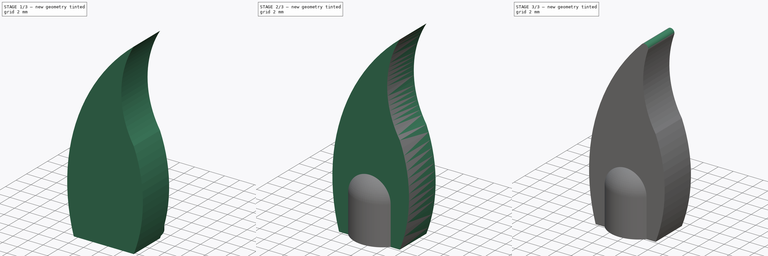
[diagram: build sequence overview — one tinted view per stage of 3, left to right]
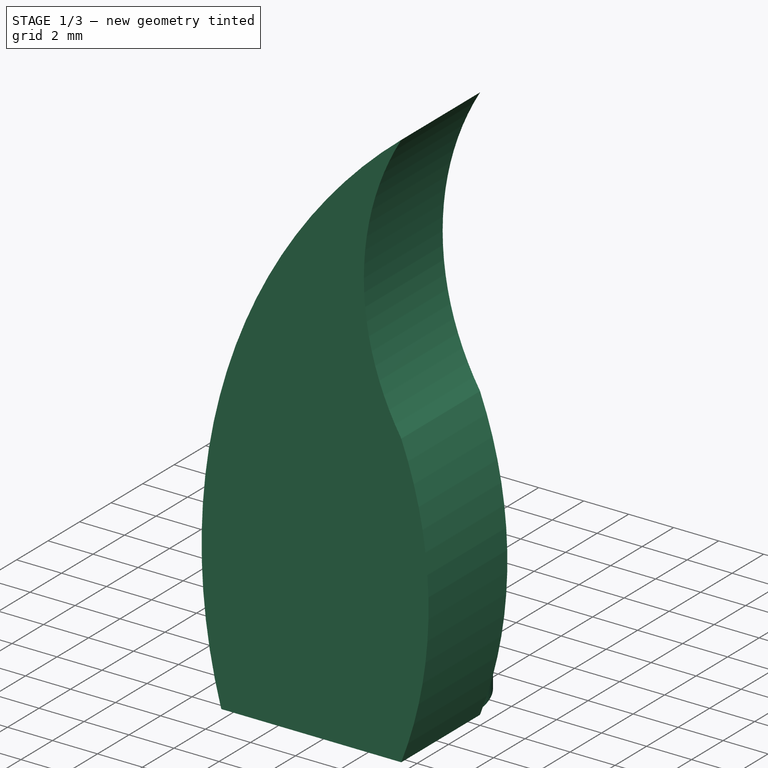
[diagram: stage 1 of 3 — iso view after this stage's code; geometry added in this stage tinted green]
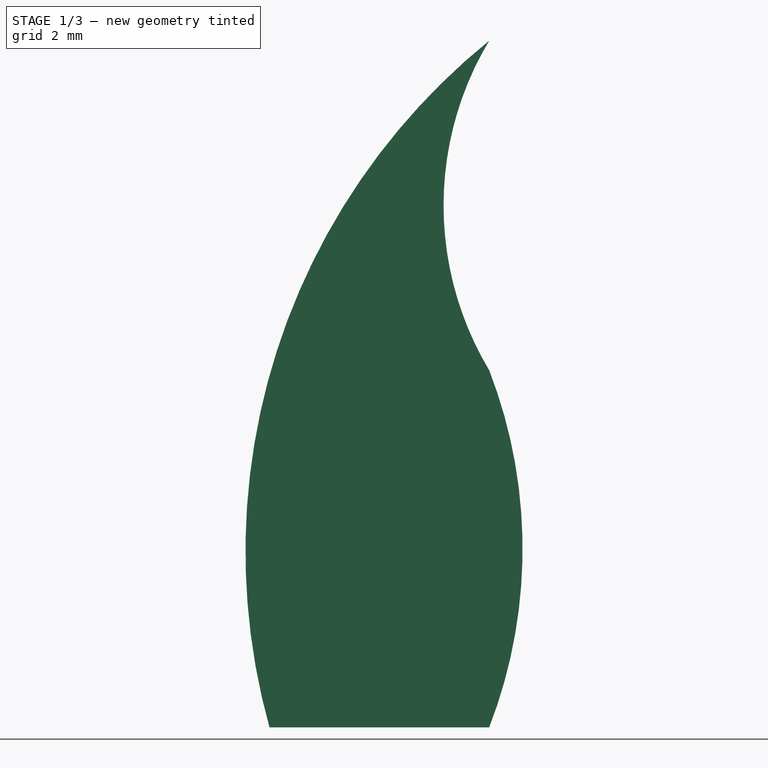
[diagram: stage 1 of 3 — front view after this stage's code; geometry added in this stage tinted green]
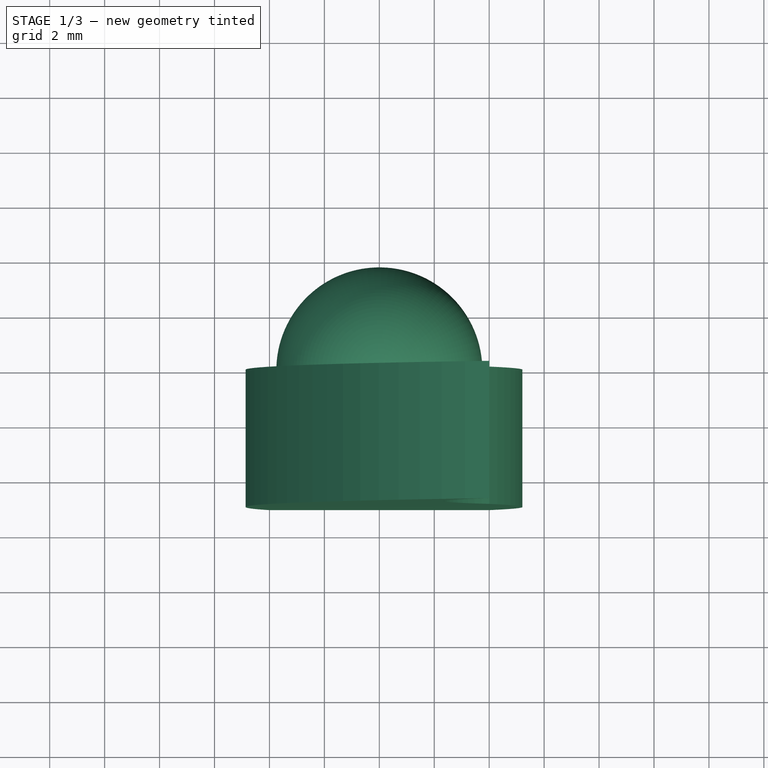
[diagram: stage 1 of 3 — top view after this stage's code; geometry added in this stage tinted green]
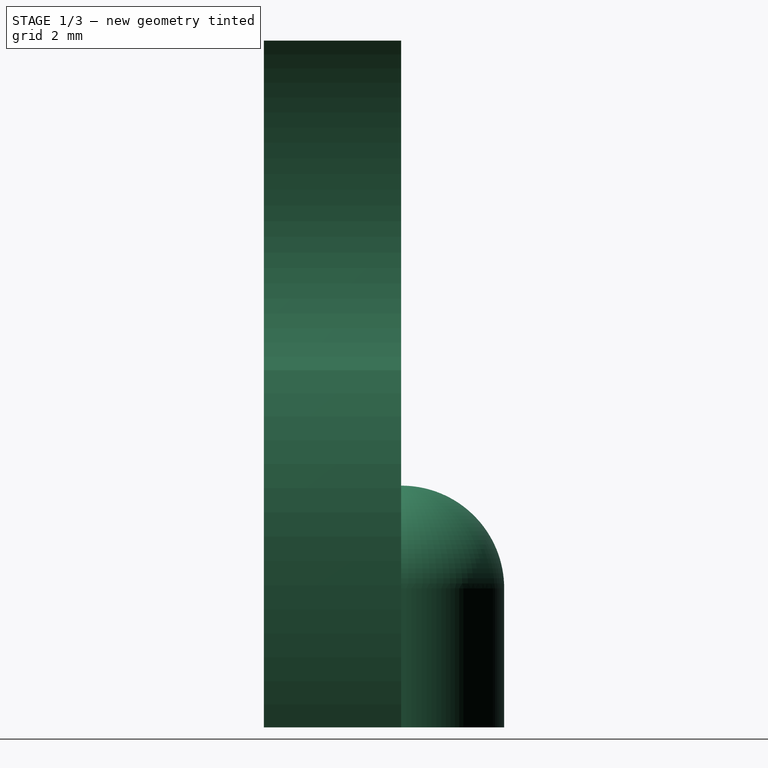
[diagram: stage 1 of 3 — right view after this stage's code; geometry added in this stage tinted green]
FCSTD DOCUMENT  (FreeCAD 0.19R24276 (Git))
Label: flame_diffuser
License: All rights reserved
LicenseURL: http://en.wikipedia.org/wiki/All_rights_reserved
objects: Part::Fillet×3, Part::Cylinder×2, Sketcher::SketchObject×1, PartDesign::Pad×1, PartDesign::Body×1, Part::MultiFuse×1, Part::Cut×1
note: 11 computed .brp shape members not serialized (recipe doc carries the construction recipe); baked Part::Feature solids carry a one-line shape summary decoded from their .brp

FEATURE [Part::Cylinder] Cylinder001
  Angle = 360
  AttacherType = Attacher::AttachEngine3D
  Height = 8.8
  Radius = 3.75
FEATURE [Part::Fillet] Fillet001  label="led cover without led removed"
  Base = -> Cylinder001
  Edges = 1 edges r=3.74: [Edge1]
FEATURE [Sketcher::SketchObject] Sketch
  FullyConstrained = true
  MapMode = 5
  Placement = pos=(0,0,0) rot=(1,0,0;1.5708rad)
  Support = -> [XZ_Plane003]
  sketch-geometry (5):
    g0: LineSegment StartX=-4 StartY=-1.8e-15 StartZ=0 EndX=4 EndY=7.1e-15 EndZ=0
    g1: GeomPoint X=4 Y=25 Z=0
    g2: ArcOfCircle CenterX=19.05 CenterY=6.404 CenterZ=0 NormalX=0 NormalY=0 NormalZ=1 AngleXU=0 Radius=23.9231 StartAngle=2.25119 EndAngle=3.41259
    g3: ArcOfCircle CenterX=-12.8 CenterY=6.5 CenterZ=0 NormalX=0 NormalY=0 NormalZ=1 AngleXU=0 Radius=18.0136 StartAngle=5.91402 EndAngle=6.65235
    g4: ArcOfCircle CenterX=14 CenterY=19 CenterZ=0 NormalX=0 NormalY=0 NormalZ=1 AngleXU=0 Radius=11.6619 StartAngle=2.60117 EndAngle=3.68201
  constraints (16):
    c: PointOnObject(g0,g-1)
    c: PointOnObject(g0,g-1)
    c: Coincident(g3,g0)
    c: Coincident(g4,g3)
    c: DistanceX(g0,g0) = 8
    c: DistanceX(g-1,g1) = 4
    c: DistanceX(g-1,g0) = 4
    c: DistanceX(g3,g1) = 0
    c: DistanceY(g-1,g1) = 25
    c: DistanceY(g3) = 13
    c: DistanceX(g3,g-1) = 12.8
    c: DistanceX(g-1,g4) = 14
    c: DistanceX(g-1,g2) = 19.05
    c: Coincident(g0,g2)
    c: Coincident(g4,g2)
    c: Coincident(g1,g2)
FEATURE [PartDesign::Pad] Pad
  Direction = (1,1,1)
  Length = 5
  Length2 = 100
  Placement = pos=(0,0,0) rot=(1,0,0;1.5708rad)
  Profile = -> Sketch
  Type = 0
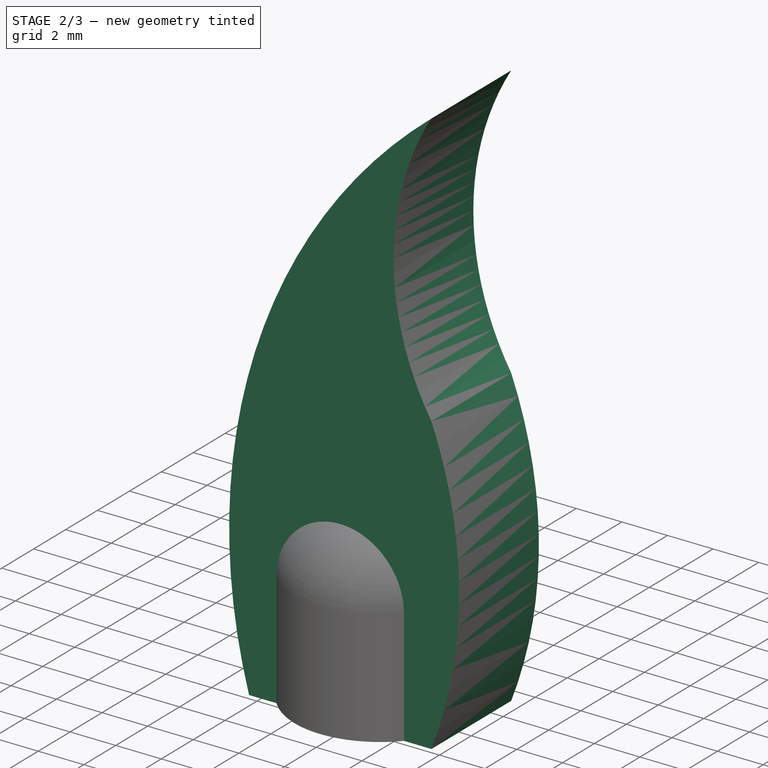
[diagram: stage 2 of 3 — iso view after this stage's code; geometry added in this stage tinted green]
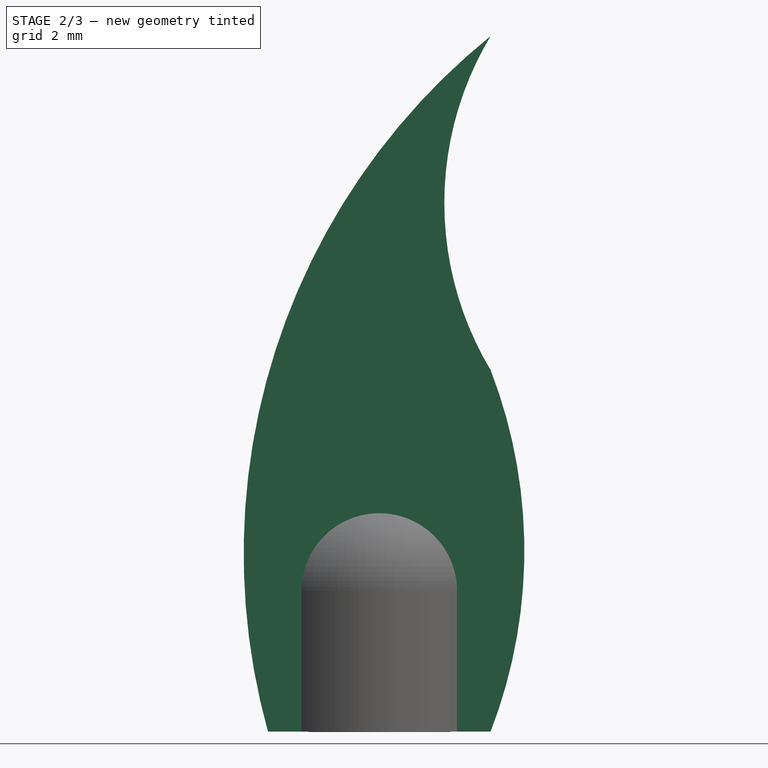
[diagram: stage 2 of 3 — front view after this stage's code; geometry added in this stage tinted green]
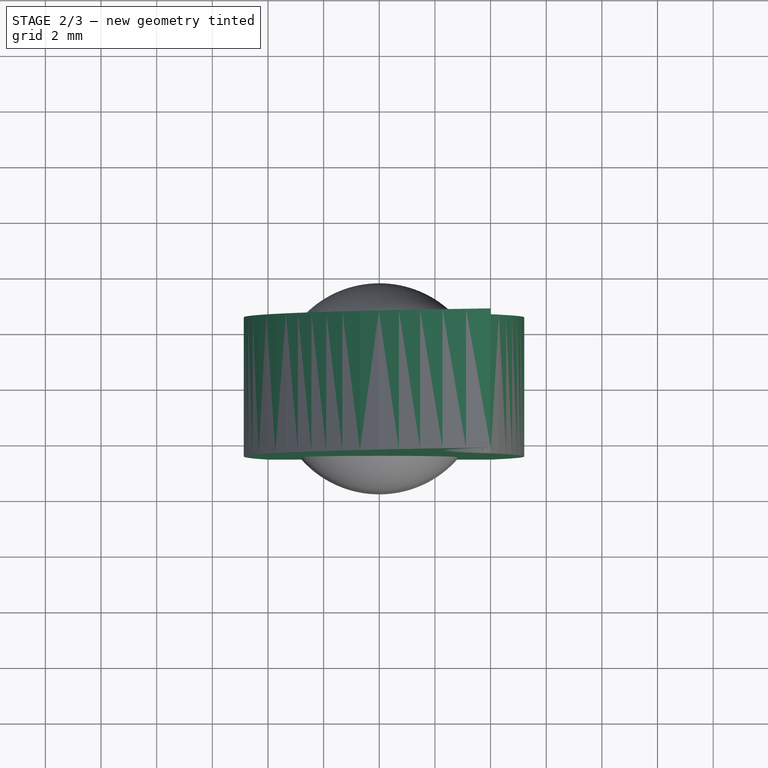
[diagram: stage 2 of 3 — top view after this stage's code; geometry added in this stage tinted green]
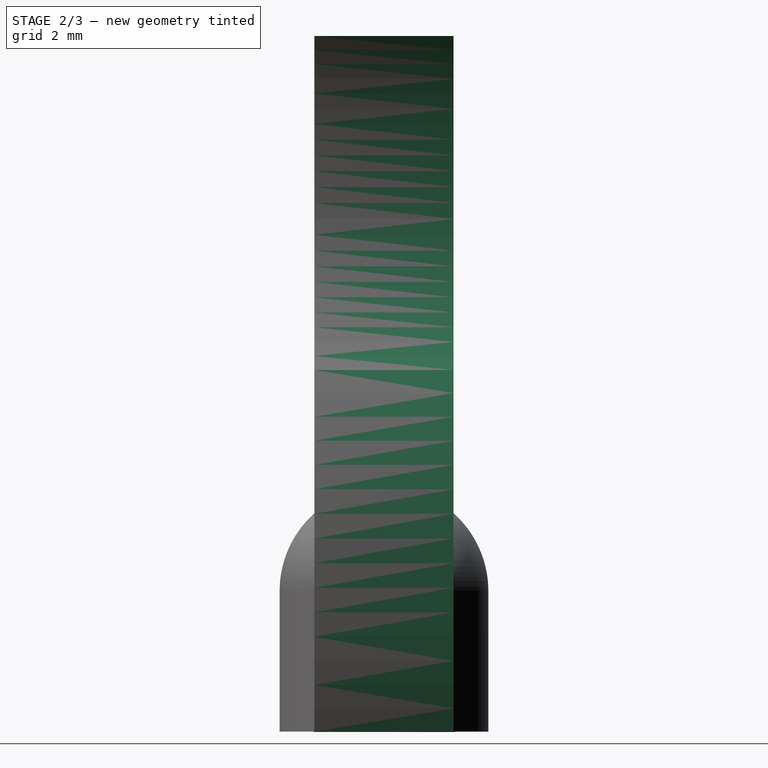
[diagram: stage 2 of 3 — right view after this stage's code; geometry added in this stage tinted green]
FEATURE [Part::Cylinder] Cylinder
  Angle = 360
  AttacherType = Attacher::AttachEngine3D
  Height = 7.6
  Placement = pos=(0,0,-0.01) rot=(0,0,1;0rad)
  Radius = 2.55
FEATURE [PartDesign::Body] Body  label="flame shape"
  Group = -> [Sketch,Pad]
  Origin = -> Origin003
  Placement = pos=(0,2.5,0) rot=(0,0,1;0rad)
  Tip = -> Pad
FEATURE [Part::MultiFuse] Fusion
  Shapes = -> [Fillet001,Body]
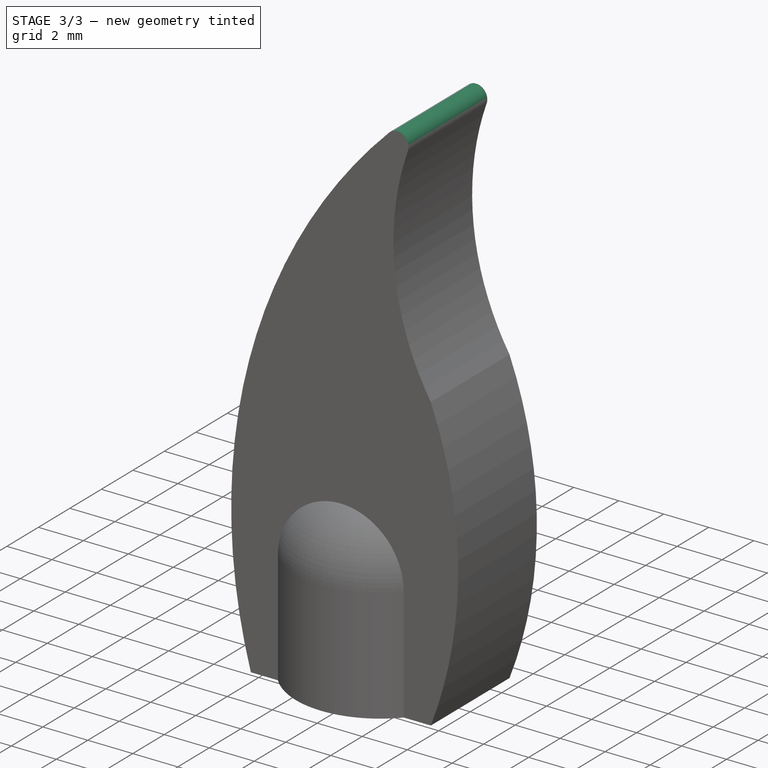
[diagram: stage 3 of 3 — iso view after this stage's code; geometry added in this stage tinted green]
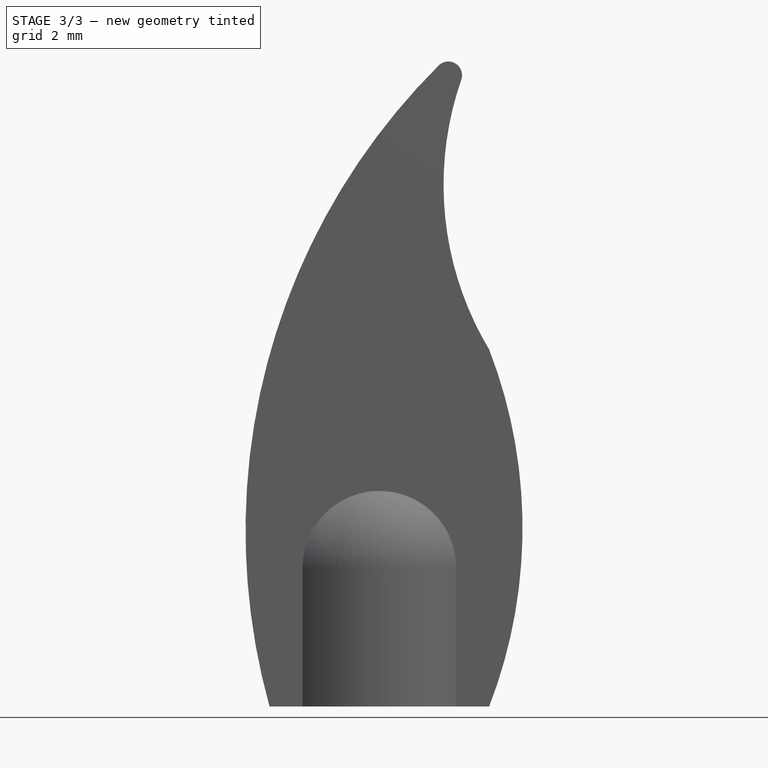
[diagram: stage 3 of 3 — front view after this stage's code; geometry added in this stage tinted green]
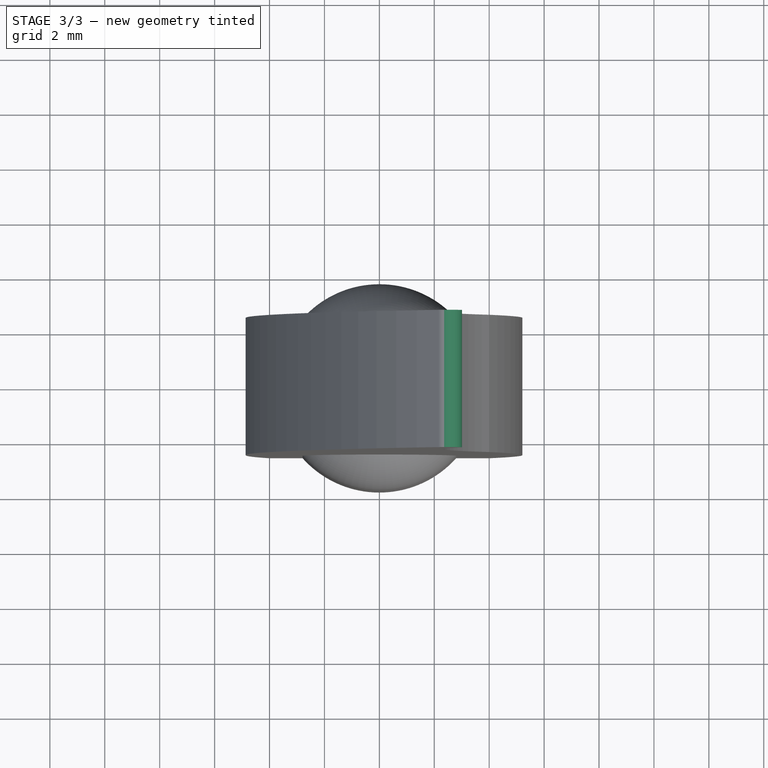
[diagram: stage 3 of 3 — top view after this stage's code; geometry added in this stage tinted green]
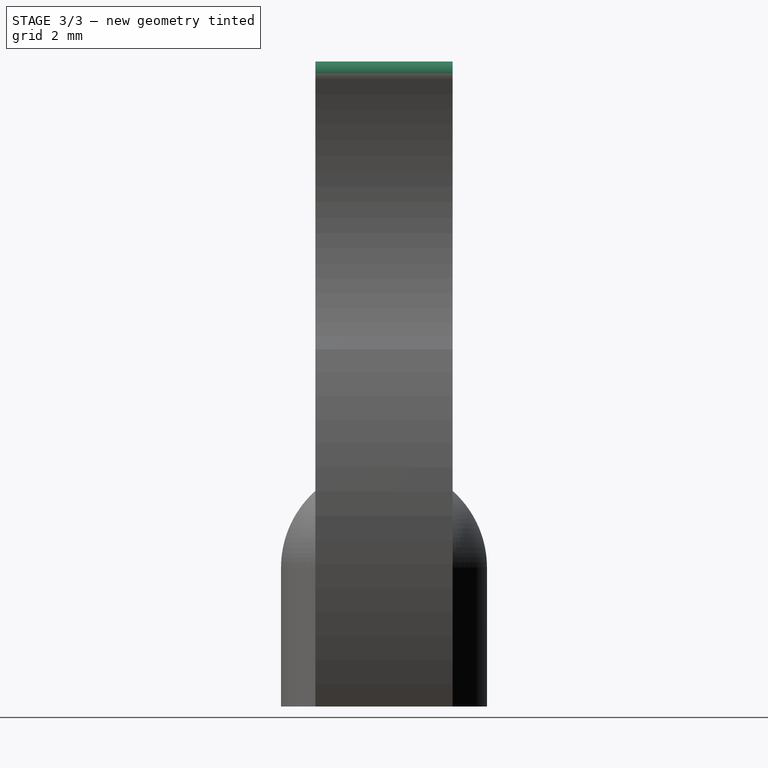
[diagram: stage 3 of 3 — right view after this stage's code; geometry added in this stage tinted green]
FEATURE [Part::Fillet] Fillet  label="led clearance to be removed"
  Base = -> Cylinder
  Edges = 1 edges r=2.5: [Edge1]
FEATURE [Part::Cut] Cut
  Base = -> Fusion
  Tool = -> Fillet
FEATURE [Part::Fillet] Fillet002  label="flame_diffuser"
  Base = -> Cut
  Edges = 1 edges r=0.5: [Edge22]
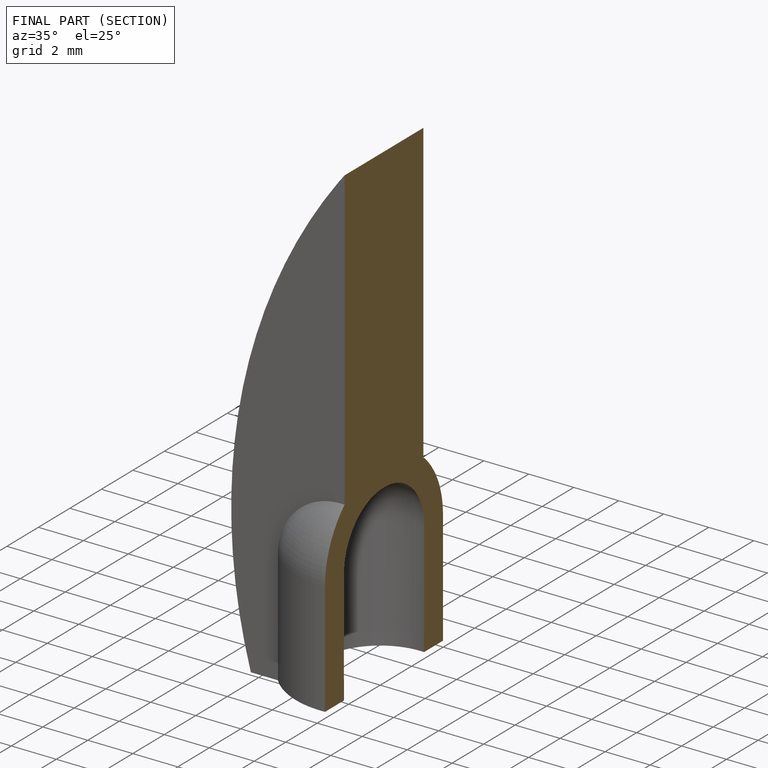
[diagram: finished part — half-section view (interior)]
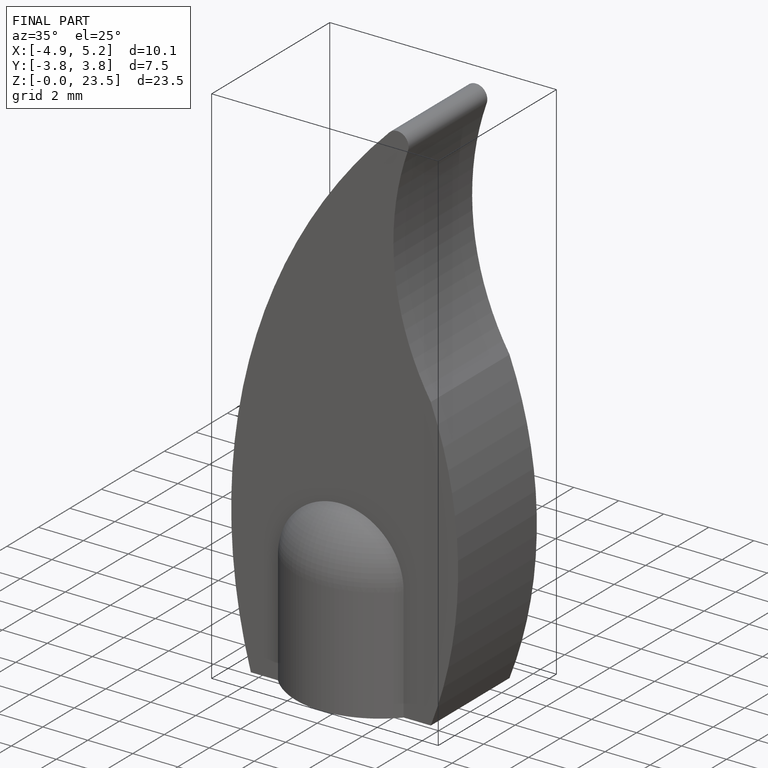
[diagram: finished part — iso view with bounding-box wireframe]
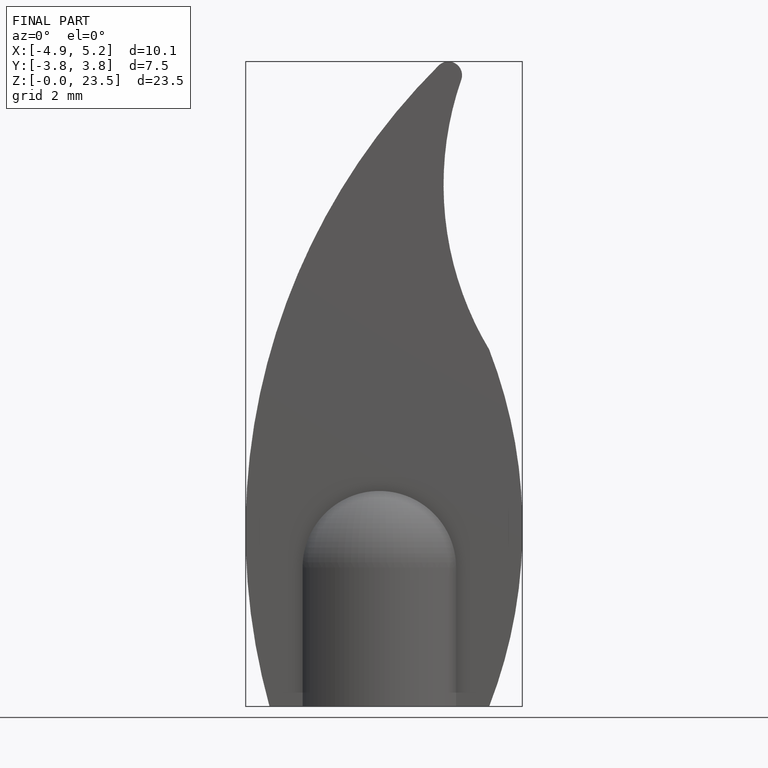
[diagram: finished part — front view with bounding-box wireframe]
